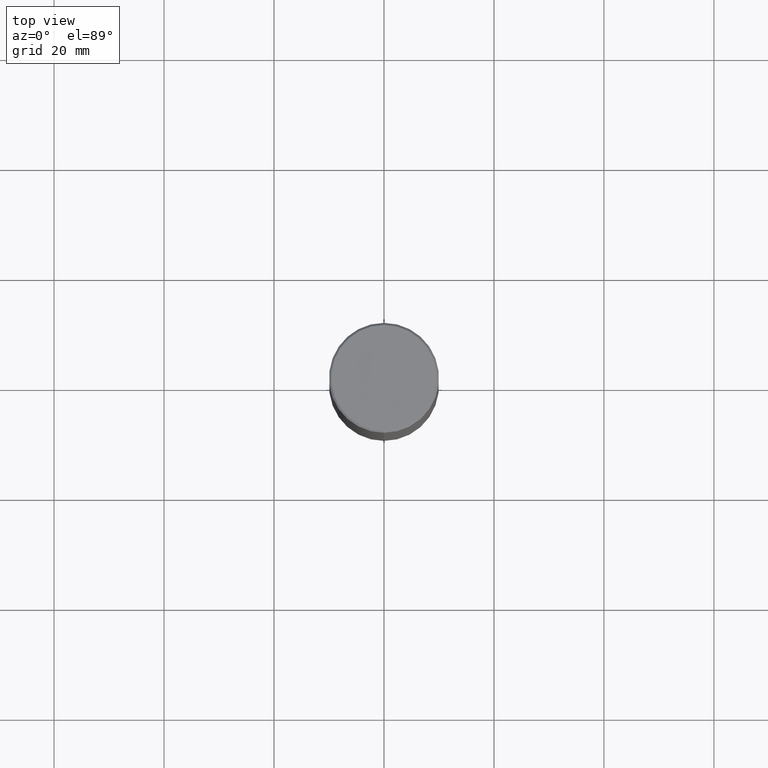
[diagram: clean part render]
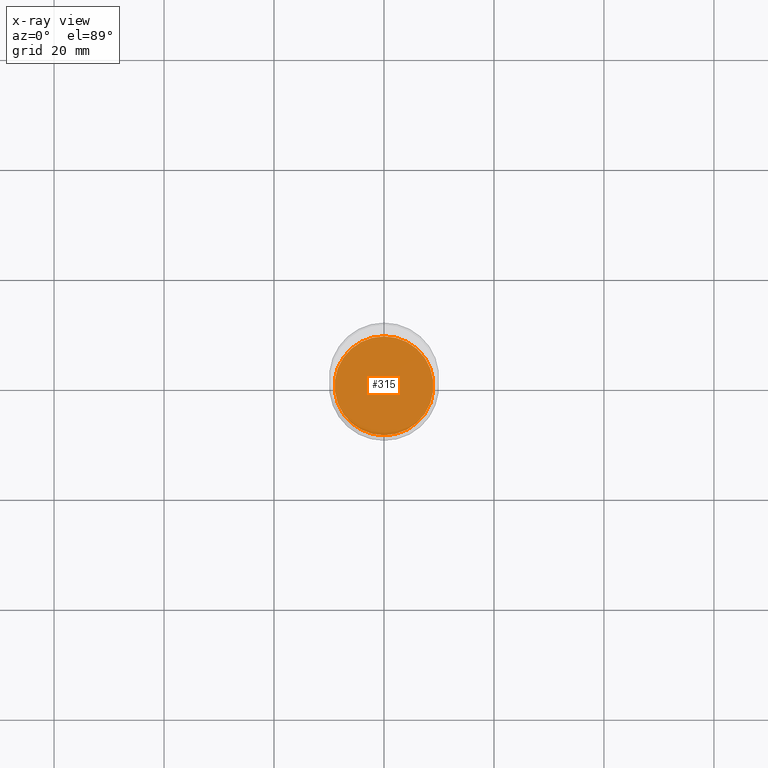
[diagram: x-ray — body ghosted, one internal face saturated and labeled with its STEP entity id]
A machine part, top view, then the same camera in x-ray: the body is ghosted and one INTERNAL B-rep face — a face not visible from any outside direction — is saturated and labeled: STEP entity #315.
In plain terms, the highlighted planar face has unit normal (-0, 0, 1).
Its self-contained STEP definition (entity closure, byte-faithful):
#13 = DIRECTION ( 'NONE',  ( -2.446619523069191814E-29, 3.489833446770440452E-15, 1.000000000000000000 ) ) ;
#99 = DIRECTION ( 'NONE',  ( -6.982962677686265922E-15, -1.000000000000000000, 3.489833446770440452E-15 ) ) ;
#104 = CIRCLE ( 'NONE', #397, 0.3538500000000001089 ) ;
#110 = ORIENTED_EDGE ( 'NONE', *, *, #208, .F. ) ;
#113 = CARTESIAN_POINT ( 'NONE',  ( 8.187367571998744394E-29, -1.167837864627260117E-14, -3.346400000000000041 ) ) ;
#117 = ORIENTED_EDGE ( 'NONE', *, *, #425, .F. ) ;
#205 = FACE_OUTER_BOUND ( 'NONE', #250, .T. ) ;
#208 = EDGE_CURVE ( 'NONE', #265, #385, #104, .T. ) ;
#221 = AXIS2_PLACEMENT_3D ( 'NONE', #113, #437, #312 ) ;
#240 = DIRECTION ( 'NONE',  ( -6.982962677686265922E-15, -1.000000000000000000, 3.088142426072361029E-15 ) ) ;
#245 = PLANE ( 'NONE',  #340 ) ;
#250 = EDGE_LOOP ( 'NONE', ( #117, #110 ) ) ;
#265 = VERTEX_POINT ( 'NONE', #411 ) ;
#290 = CARTESIAN_POINT ( 'NONE',  ( 8.187367571998744394E-29, -1.167837864627260117E-14, -3.346400000000000041 ) ) ;
#312 = DIRECTION ( 'NONE',  ( -6.982962677686265922E-15, -1.000000000000000000, 3.088142426072361029E-15 ) ) ;
#315 = ADVANCED_FACE ( 'NONE', ( #205 ), #245, .F. ) ;
#340 = AXIS2_PLACEMENT_3D ( 'NONE', #407, #13, #99 ) ;
#349 = CARTESIAN_POINT ( 'NONE',  ( -2.470921343499204040E-15, -0.3538500000000117662, -3.346399999999999153 ) ) ;
#378 = CIRCLE ( 'NONE', #221, 0.3538500000000001089 ) ;
#385 = VERTEX_POINT ( 'NONE', #349 ) ;
#397 = AXIS2_PLACEMENT_3D ( 'NONE', #290, #494, #240 ) ;
#407 = CARTESIAN_POINT ( 'NONE',  ( 8.187367571998744394E-29, -1.167837864627260117E-14, -3.346400000000000041 ) ) ;
#411 = CARTESIAN_POINT ( 'NONE',  ( 2.516031827326597772E-15, 0.3538499999999884515, -3.346400000000001373 ) ) ;
#425 = EDGE_CURVE ( 'NONE', #385, #265, #378, .T. ) ;
#437 = DIRECTION ( 'NONE',  ( -2.446619523069192094E-29, 3.489833446770440452E-15, 1.000000000000000000 ) ) ;
#494 = DIRECTION ( 'NONE',  ( -2.446619523069192094E-29, 3.489833446770440452E-15, 1.000000000000000000 ) ) ;